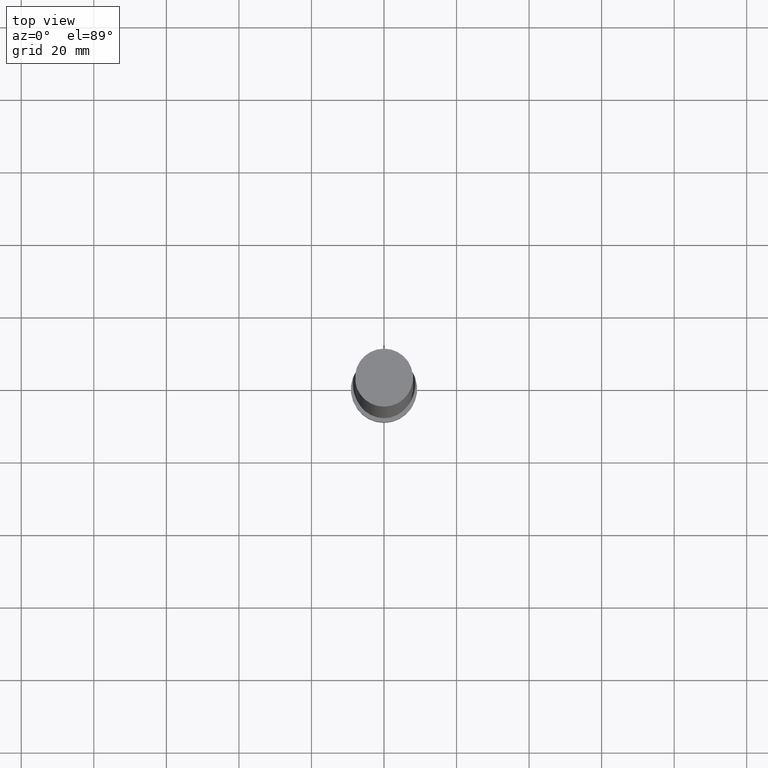
[diagram: clean part render]
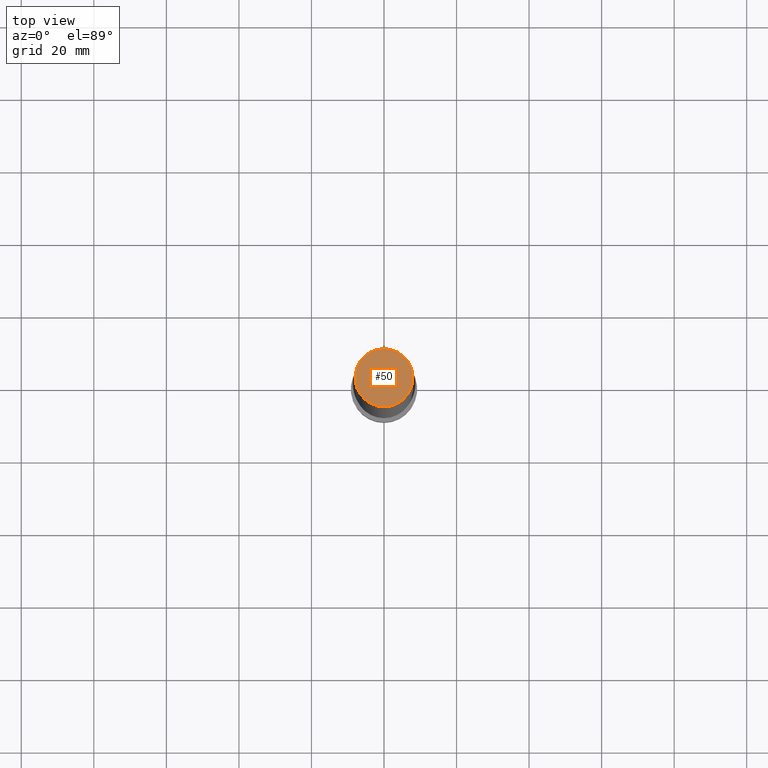
[diagram: same view with one face highlighted and labeled with its STEP entity id]
A machine part, top view. The second image highlights one B-rep face of the part: STEP entity #50.
In plain terms, the highlighted planar face has unit normal (-0, 0, 1).
Its self-contained STEP definition (entity closure, byte-faithful):
#50=ADVANCED_FACE('Unnamed[1]',(#108),#109,.T.);
#58=EDGE_CURVE('Unnamed[1]',#120,#120,#121,.T.);
#108=FACE_OUTER_BOUND('',#173,.T.);
#109=PLANE('',#174);
#120=VERTEX_POINT('',#189);
#121=CIRCLE('',#190,8.0);
#173=EDGE_LOOP('',(#238));
#174=AXIS2_PLACEMENT_3D('',#239,#240,#241);
#189=CARTESIAN_POINT('',(-1.22464679914735E-014,7.99999999999994,200.0));
#190=AXIS2_PLACEMENT_3D('',#251,#252,#253);
#238=ORIENTED_EDGE('',*,*,#58,.F.);
#239=CARTESIAN_POINT('',(-1.22464679914735E-014,3.99999999999994,200.0));
#240=DIRECTION('',(-6.12323399573677E-017,6.98296267768627E-015,1.0));
#241=DIRECTION('',(-4.22755991858927E-031,-1.0,6.98296267768627E-015));
#251=CARTESIAN_POINT('',(-1.22464679914735E-014,-5.35136254120158E-014,200.0));
#252=DIRECTION('',(6.12323399573677E-017,2.62119965380345E-016,-1.0));
#253=DIRECTION('',(-2.08773715605518E-032,1.0,2.62119965380345E-016));